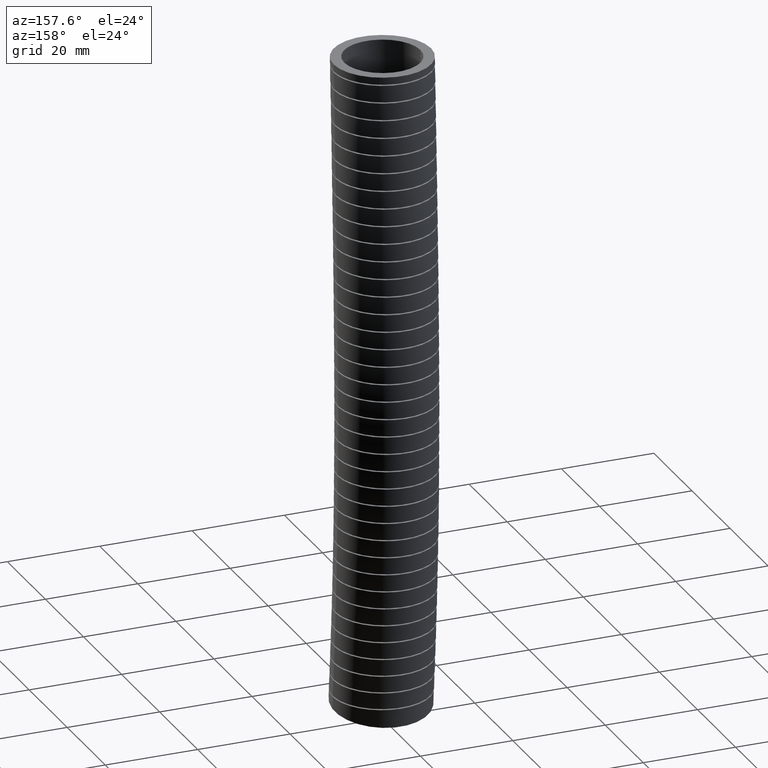
[diagram: clean part render]
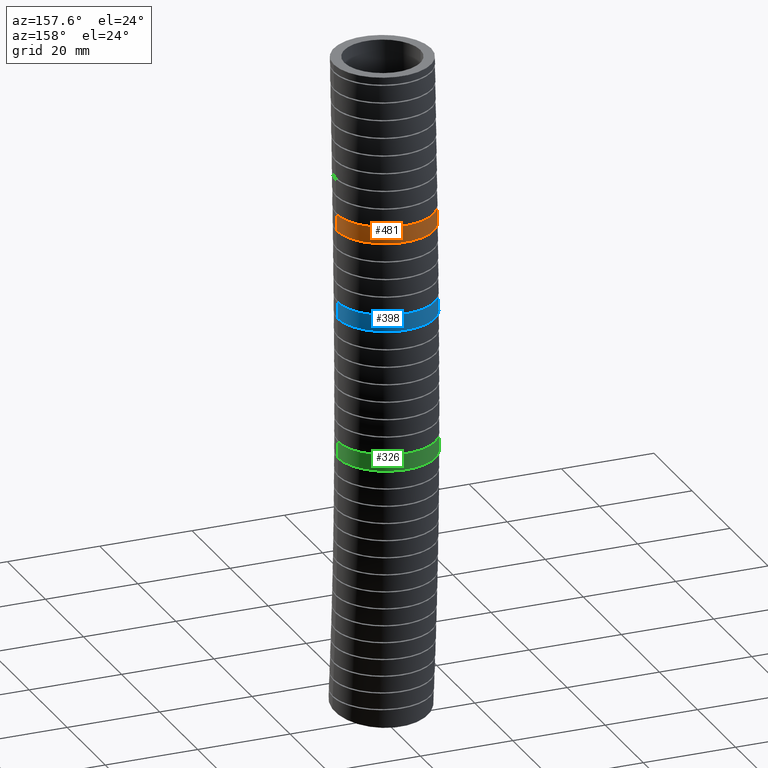
[diagram: same view with three faces highlighted in distinct colors, each labeled with its STEP entity id]
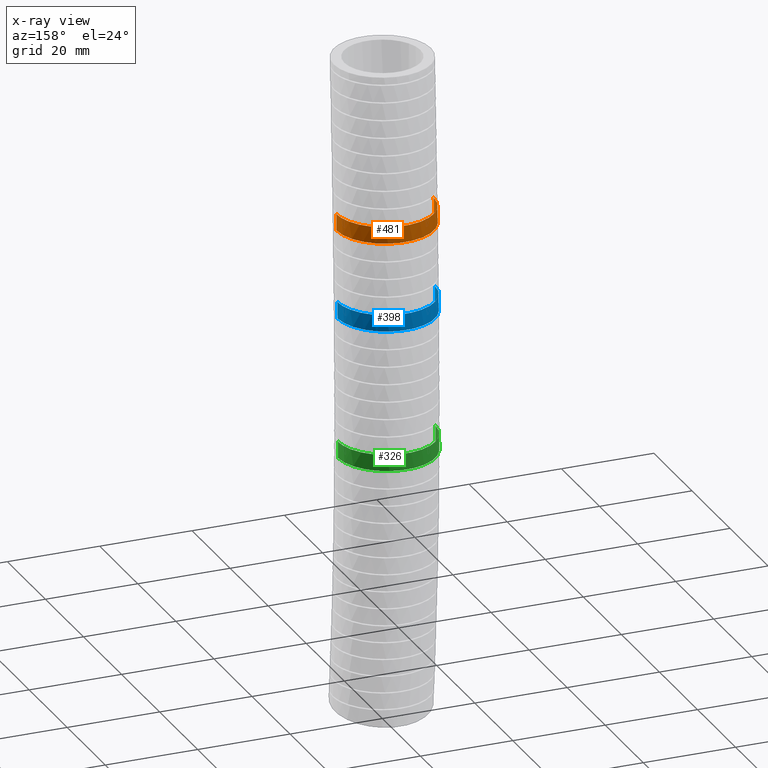
[diagram: x-ray of the same camera — body ghosted, the three highlighted faces saturated]
A machine part, auxiliary view with three faces highlighted in distinct colors.
The next image is the same camera in x-ray (body ghosted, the three faces saturated) — at least one of them is partly hidden behind the body in this view.
Their STEP definitions:

[orange] entity #481 — the highlighted face is a freeform B-spline surface patch.
#456 = ORIENTED_EDGE ( 'NONE', *, *, #464, .T. ) ;
#457 = ORIENTED_EDGE ( 'NONE', *, *, #885, .T. ) ;
#464 = EDGE_CURVE ( 'NONE', #865, #871, #14171, .T. ) ;
#468 = EDGE_CURVE ( 'NONE', #869, #872, #14320, .T. ) ;
#471 = EDGE_LOOP ( 'NONE', ( #473, #474, #457, #456 ) ) ;
#473 = ORIENTED_EDGE ( 'NONE', *, *, #873, .F. ) ;
#474 = ORIENTED_EDGE ( 'NONE', *, *, #468, .T. ) ;
#481 = ADVANCED_FACE ( 'NONE', ( #14362 ), #14432, .T. ) ;
#865 = VERTEX_POINT ( 'NONE', #7951 ) ;
#869 = VERTEX_POINT ( 'NONE', #7944 ) ;
#871 = VERTEX_POINT ( 'NONE', #8010 ) ;
#872 = VERTEX_POINT ( 'NONE', #8008 ) ;
#873 = EDGE_CURVE ( 'NONE', #869, #871, #8000, .T. ) ;
#885 = EDGE_CURVE ( 'NONE', #872, #865, #8266, .T. ) ;
#7944 = CARTESIAN_POINT ( 'NONE',  ( -0.4150000000000000900, 0.05367603331601119400, -1.268930700372042500 ) ) ;
#7951 = CARTESIAN_POINT ( 'NONE',  ( 0.4150000000000000400, 0.05873376424750326200, -1.408832748862976800 ) ) ;
#7981 = CARTESIAN_POINT ( 'NONE',  ( -0.4150000000000000400, 0.05873376424749324200, -1.408832748862833200 ) ) ;
#7983 = CARTESIAN_POINT ( 'NONE',  ( -0.4150000000000000400, 0.05709139309893702200, -1.362200551414999700 ) ) ;
#7985 = CARTESIAN_POINT ( 'NONE',  ( -0.4150000000000000900, 0.05540399189541873900, -1.315566472973891600 ) ) ;
#7987 = CARTESIAN_POINT ( 'NONE',  ( -0.4150000000000000900, 0.05367603331601119400, -1.268930700372042500 ) ) ;
#8000 = B_SPLINE_CURVE_WITH_KNOTS ( 'NONE', 3,
 ( #7987, #7985, #7983, #7981 ),
 .UNSPECIFIED., .F., .F.,
 ( 4, 4 ),
 ( 0.2273615130493314700, 0.2524350060721685100 ),
 .UNSPECIFIED. ) ;
#8008 = CARTESIAN_POINT ( 'NONE',  ( 0.4150000000000000900, 0.05367603331602129000, -1.268930700372179700 ) ) ;
#8010 = CARTESIAN_POINT ( 'NONE',  ( -0.4150000000000000400, 0.05873376424749324200, -1.408832748862833200 ) ) ;
#8256 = CARTESIAN_POINT ( 'NONE',  ( 0.4150000000000000400, 0.05873376424750326200, -1.408832748862976800 ) ) ;
#8257 = CARTESIAN_POINT ( 'NONE',  ( 0.4150000000000000900, 0.05709139309894208800, -1.362200551415141600 ) ) ;
#8259 = CARTESIAN_POINT ( 'NONE',  ( 0.4150000000000000900, 0.05540399189542379700, -1.315566472974031500 ) ) ;
#8260 = CARTESIAN_POINT ( 'NONE',  ( 0.4150000000000000900, 0.05367603331602129000, -1.268930700372179700 ) ) ;
#8266 = B_SPLINE_CURVE_WITH_KNOTS ( 'NONE', 3,
 ( #8260, #8259, #8257, #8256 ),
 .UNSPECIFIED., .F., .F.,
 ( 4, 4 ),
 ( 0.2273615130493561200, 0.2524350060721943800 ),
 .UNSPECIFIED. ) ;
#13766 = CARTESIAN_POINT ( 'NONE',  ( 0.1835599117735024200, 0.4311413972486312600, -1.408832748862833800 ) ) ;
#13769 = CARTESIAN_POINT ( 'NONE',  ( 0.2075223948829292600, 0.4183418882467340700, -1.408832748862834500 ) ) ;
#13770 = CARTESIAN_POINT ( 'NONE',  ( 0.2193121500431620100, 0.4112793678249930800, -1.408832748862834100 ) ) ;
#14171 = B_SPLINE_CURVE_WITH_KNOTS ( 'NONE', 3,
 ( #14204, #14203, #14202, #14201, #14199, #14197, #14195, #14193, #14192, #14191, #14190, #14189, #14186, #14184, #14182, #13770, #13769, #13766, #14304, #14303, #14302, #14301, #14298, #14296, #14294, #14292, #14291, #14289, #14286, #14284, #14281, #14279, #14276, #14274, #14273, #14271, #14270, #14268, #14267, #14266, #14265, #14263, #14261, #14260, #14258, #14257, #14256 ),
 .UNSPECIFIED., .F., .F.,
 ( 4, 2, 2, 2, 2, 2, 2, 2, 2, 1, 2, 2, 2, 2, 2, 2, 2, 2, 2, 2, 2, 2, 2, 4 ),
 ( 0.0000000000000000000, 0.002059647596849195500, 0.003089471395273793600, 0.004119295193698391800, 0.006178942790547591600, 0.007208766588972190600, 0.008238590387396788800, 0.01029823798424598700, 0.01132806178267058500, 0.01235788558109518500, 0.01338770937951978800, 0.01441753317794439000, 0.01647718077479359500, 0.01750700457321819500, 0.01853682837164279500, 0.02059647596849199800, 0.02162629976691660500, 0.02265612356534120800, 0.02471577116219041500, 0.02677541875903962500, 0.02780524255746422500, 0.02883506635588882500, 0.03089471395273803200, 0.03295436154958723800 ),
 .UNSPECIFIED. ) ;
#14182 = CARTESIAN_POINT ( 'NONE',  ( 0.2533425134235354200, 0.3885298394781096000, -1.408832748862834100 ) ) ;
#14184 = CARTESIAN_POINT ( 'NONE',  ( 0.2742398259200204400, 0.3713532597363529100, -1.408832748862834700 ) ) ;
#14186 = CARTESIAN_POINT ( 'NONE',  ( 0.3029641392585641900, 0.3426435229175800500, -1.408832748862834700 ) ) ;
#14189 = CARTESIAN_POINT ( 'NONE',  ( 0.3120988423604420000, 0.3325792886788779300, -1.408832748862834900 ) ) ;
#14190 = CARTESIAN_POINT ( 'NONE',  ( 0.3294597626458177200, 0.3114303312455400900, -1.408832748862834500 ) ) ;
#14191 = CARTESIAN_POINT ( 'NONE',  ( 0.3376032908710430700, 0.3004384109058206900, -1.408832748862833800 ) ) ;
#14192 = CARTESIAN_POINT ( 'NONE',  ( 0.3601964137166239200, 0.2666051388507732500, -1.408832748862834100 ) ) ;
#14193 = CARTESIAN_POINT ( 'NONE',  ( 0.3729469710725478200, 0.2427686057998489600, -1.408832748862833600 ) ) ;
#14195 = CARTESIAN_POINT ( 'NONE',  ( 0.3885742398497169500, 0.2050749434658836200, -1.408832748862833600 ) ) ;
#14197 = CARTESIAN_POINT ( 'NONE',  ( 0.3932124042409665400, 0.1921165954974319900, -1.408832748862834500 ) ) ;
#14199 = CARTESIAN_POINT ( 'NONE',  ( 0.4011144815483338500, 0.1660436912606119700, -1.408832748862833800 ) ) ;
#14201 = CARTESIAN_POINT ( 'NONE',  ( 0.4044006235095791200, 0.1528940027786585800, -1.408832748862833600 ) ) ;
#14202 = CARTESIAN_POINT ( 'NONE',  ( 0.4123088719749419800, 0.1131128090463543200, -1.408832748862834500 ) ) ;
#14203 = CARTESIAN_POINT ( 'NONE',  ( 0.4149999999999998100, 0.08615244521761611400, -1.408832748862976400 ) ) ;
#14204 = CARTESIAN_POINT ( 'NONE',  ( 0.4150000000000000400, 0.05873376424750326200, -1.408832748862976800 ) ) ;
#14256 = CARTESIAN_POINT ( 'NONE',  ( -0.4150000000000000400, 0.05873376424749324200, -1.408832748862833200 ) ) ;
#14257 = CARTESIAN_POINT ( 'NONE',  ( -0.4150000000000001500, 0.08581770872272720400, -1.408832748862834700 ) ) ;
#14258 = CARTESIAN_POINT ( 'NONE',  ( -0.4122857020543555000, 0.1133229540730791300, -1.408832748862834700 ) ) ;
#14260 = CARTESIAN_POINT ( 'NONE',  ( -0.4016780441006999600, 0.1664949414059915000, -1.408832748862834700 ) ) ;
#14261 = CARTESIAN_POINT ( 'NONE',  ( -0.3938333107303071400, 0.1923668581449793400, -1.408832748862834700 ) ) ;
#14263 = CARTESIAN_POINT ( 'NONE',  ( -0.3782078975036338200, 0.2300904215330365500, -1.408832748862834900 ) ) ;
#14265 = CARTESIAN_POINT ( 'NONE',  ( -0.3723188172265673400, 0.2425330402528123300, -1.408832748862834700 ) ) ;
#14266 = CARTESIAN_POINT ( 'NONE',  ( -0.3594715291938560500, 0.2665360755342419700, -1.408832748862834700 ) ) ;
#14267 = CARTESIAN_POINT ( 'NONE',  ( -0.3524967624132215900, 0.2781512807448072200, -1.408832748862833600 ) ) ;
#14268 = CARTESIAN_POINT ( 'NONE',  ( -0.3299533421057696000, 0.3118619656330627900, -1.408832748862833800 ) ) ;
#14270 = CARTESIAN_POINT ( 'NONE',  ( -0.3127457687878309500, 0.3328694105156093100, -1.408832748862834700 ) ) ;
#14271 = CARTESIAN_POINT ( 'NONE',  ( -0.2739942463359710800, 0.3715961588308047100, -1.408832748862834700 ) ) ;
#14273 = CARTESIAN_POINT ( 'NONE',  ( -0.2530325119653573100, 0.3887475110797318200, -1.408832748862834700 ) ) ;
#14274 = CARTESIAN_POINT ( 'NONE',  ( -0.2193007403013831900, 0.4112817398469867400, -1.408832748862834500 ) ) ;
#14276 = CARTESIAN_POINT ( 'NONE',  ( -0.2076724725204629500, 0.4182570892168481800, -1.408832748862835800 ) ) ;
#14279 = CARTESIAN_POINT ( 'NONE',  ( -0.1836284155750675400, 0.4311093995255875200, -1.408832748862835600 ) ) ;
#14281 = CARTESIAN_POINT ( 'NONE',  ( -0.1711899658121454100, 0.4369864277960379700, -1.408832748862833800 ) ) ;
#14284 = CARTESIAN_POINT ( 'NONE',  ( -0.1335063773621627800, 0.4525726737114387200, -1.408832748862834100 ) ) ;
#14286 = CARTESIAN_POINT ( 'NONE',  ( -0.1076366809073076700, 0.4604094150153414400, -1.408832748862834700 ) ) ;
#14289 = CARTESIAN_POINT ( 'NONE',  ( -0.06771759161767061700, 0.4683553062615838400, -1.408832748862834700 ) ) ;
#14291 = CARTESIAN_POINT ( 'NONE',  ( -0.05416298683577991400, 0.4703698920824831400, -1.408832748862834500 ) ) ;
#14292 = CARTESIAN_POINT ( 'NONE',  ( -0.02695494053217638000, 0.4730415309888379400, -1.408832748862834100 ) ) ;
#14294 = CARTESIAN_POINT ( 'NONE',  ( -0.01338681805319976100, 0.4736969862393138900, -1.408832748862834500 ) ) ;
#14296 = CARTESIAN_POINT ( 'NONE',  ( 0.02721303444755382400, 0.4736826587160217800, -1.408832748862833800 ) ) ;
#14298 = CARTESIAN_POINT ( 'NONE',  ( 0.05414124535226479100, 0.4710510547281972500, -1.408832748862833600 ) ) ;
#14301 = CARTESIAN_POINT ( 'NONE',  ( 0.09432036627647975800, 0.4630633194356743000, -1.408832748862834700 ) ) ;
#14302 = CARTESIAN_POINT ( 'NONE',  ( 0.1076360413938054300, 0.4597220281041037900, -1.408832748862834900 ) ) ;
#14303 = CARTESIAN_POINT ( 'NONE',  ( 0.1336163269116228400, 0.4518304745025177300, -1.408832748862834700 ) ) ;
#14304 = CARTESIAN_POINT ( 'NONE',  ( 0.1590889421906707700, 0.4427041008414515100, -1.408832748862833600 ) ) ;
#14306 = CARTESIAN_POINT ( 'NONE',  ( -0.3375306212001782400, 0.2954883962167642000, -1.268930700372042700 ) ) ;
#14307 = CARTESIAN_POINT ( 'NONE',  ( -0.3600621828438909100, 0.2617756167878349500, -1.268930700372042900 ) ) ;
#14309 = CARTESIAN_POINT ( 'NONE',  ( -0.3728952357735813600, 0.2378499550226511100, -1.268930700372041400 ) ) ;
#14310 = CARTESIAN_POINT ( 'NONE',  ( -0.3938687553713984800, 0.1872439017412037600, -1.268930700372041600 ) ) ;
#14311 = CARTESIAN_POINT ( 'NONE',  ( -0.4017054657312514300, 0.1613212648882520500, -1.268930700372042500 ) ) ;
#14312 = CARTESIAN_POINT ( 'NONE',  ( -0.4096355645483133500, 0.1215429910320082000, -1.268930700372042700 ) ) ;
#14313 = CARTESIAN_POINT ( 'NONE',  ( -0.4116367325252456900, 0.1081334135080903600, -1.268930700372042900 ) ) ;
#14314 = CARTESIAN_POINT ( 'NONE',  ( -0.4143232269716495300, 0.08100660048841387700, -1.268930700372042700 ) ) ;
#14315 = CARTESIAN_POINT ( 'NONE',  ( -0.4150000000000001500, 0.06726777809582212800, -1.268930700372042900 ) ) ;
#14316 = CARTESIAN_POINT ( 'NONE',  ( -0.4150000000000000900, 0.05367603331601119400, -1.268930700372042500 ) ) ;
#14320 = B_SPLINE_CURVE_WITH_KNOTS ( 'NONE', 3,
 ( #14316, #14315, #14314, #14313, #14312, #14311, #14310, #14309, #14307, #14306, #14429, #14428, #14427, #14426, #14424, #14423, #14422, #14420, #14419, #14418, #14417, #14415, #14414, #14411, #14409, #14407, #14406, #14403, #14401, #14398, #14395, #14393, #14391, #14389, #14388, #14387, #14385, #14384, #14383, #14381, #14380, #14378, #14377, #14375, #14374, #14373, #14372, #14370 ),
 .UNSPECIFIED., .F., .F.,
 ( 4, 2, 2, 2, 2, 2, 2, 2, 2, 2, 2, 1, 2, 2, 2, 2, 2, 2, 2, 2, 2, 2, 1, 2, 4 ),
 ( 0.03330717870997359400, 0.03434808895217744700, 0.03538899919438130000, 0.03747081967878900000, 0.03955264016319670600, 0.04059355040540055900, 0.04163446064760441300, 0.04371628113201211900, 0.04579810161641982600, 0.04787992210082753200, 0.04892083234303138500, 0.04996174258523523900, 0.05100265282743909900, 0.05204356306964294500, 0.05412538355405066600, 0.05516629379625451900, 0.05620720403845837200, 0.05828902452286608600, 0.05932993476506994600, 0.06037084500727379900, 0.06245266549168151900, 0.06349357573388538000, 0.06453448597608924000, 0.06557539621829310000, 0.06661630646049696000 ),
 .UNSPECIFIED. ) ;
#14362 = FACE_OUTER_BOUND ( 'NONE', #471, .T. ) ;
#14370 = CARTESIAN_POINT ( 'NONE',  ( 0.4150000000000000900, 0.05367603331602129000, -1.268930700372179700 ) ) ;
#14372 = CARTESIAN_POINT ( 'NONE',  ( 0.4150000000000000900, 0.06738361499828711400, -1.268930700372179300 ) ) ;
#14373 = CARTESIAN_POINT ( 'NONE',  ( 0.4143161297753789600, 0.08109990941886002800, -1.268930700372042900 ) ) ;
#14374 = CARTESIAN_POINT ( 'NONE',  ( 0.4116309614219876300, 0.1081699378591734100, -1.268930700372042900 ) ) ;
#14375 = CARTESIAN_POINT ( 'NONE',  ( 0.4076331588607058400, 0.1349561143612534900, -1.268930700372041800 ) ) ;
#14377 = CARTESIAN_POINT ( 'NONE',  ( 0.4010599446183544800, 0.1611853683078858200, -1.268930700372043600 ) ) ;
#14378 = CARTESIAN_POINT ( 'NONE',  ( 0.3931865205022155900, 0.1871334570292280700, -1.268930700372043800 ) ) ;
#14380 = CARTESIAN_POINT ( 'NONE',  ( 0.3885825838549115100, 0.2000078348679664700, -1.268930700372042300 ) ) ;
#14381 = CARTESIAN_POINT ( 'NONE',  ( 0.3728579957559898200, 0.2379213621656600900, -1.268930700372041800 ) ) ;
#14383 = CARTESIAN_POINT ( 'NONE',  ( 0.3600619452930891600, 0.2617778080909382000, -1.268930700372043800 ) ) ;
#14384 = CARTESIAN_POINT ( 'NONE',  ( 0.3375176902167022500, 0.2955068254293020700, -1.268930700372044000 ) ) ;
#14385 = CARTESIAN_POINT ( 'NONE',  ( 0.3294404881355258400, 0.3064047147591770800, -1.268930700372043600 ) ) ;
#14387 = CARTESIAN_POINT ( 'NONE',  ( 0.3121316206942358300, 0.3274921211326563600, -1.268930700372042900 ) ) ;
#14388 = CARTESIAN_POINT ( 'NONE',  ( 0.3028959705673987500, 0.3376709916010997600, -1.268930700372042300 ) ) ;
#14389 = CARTESIAN_POINT ( 'NONE',  ( 0.2740645598845188300, 0.3664684172690809100, -1.268930700372042500 ) ) ;
#14391 = CARTESIAN_POINT ( 'NONE',  ( 0.2531673147922040600, 0.3836066536208103700, -1.268930700372042700 ) ) ;
#14393 = CARTESIAN_POINT ( 'NONE',  ( 0.2193128701035911600, 0.4062311629524182300, -1.268930700372043400 ) ) ;
#14395 = CARTESIAN_POINT ( 'NONE',  ( 0.2075435198313951000, 0.4132877195049629000, -1.268930700372043600 ) ) ;
#14398 = CARTESIAN_POINT ( 'NONE',  ( 0.1834516181040439500, 0.4261531280048318500, -1.268930700372043600 ) ) ;
#14401 = CARTESIAN_POINT ( 'NONE',  ( 0.1711754536399998100, 0.4319465811158060800, -1.268930700372042700 ) ) ;
#14403 = CARTESIAN_POINT ( 'NONE',  ( 0.1336756032602148300, 0.4474627338235896400, -1.268930700372042900 ) ) ;
#14406 = CARTESIAN_POINT ( 'NONE',  ( 0.1077869992165819400, 0.4553391060536001200, -1.268930700372042900 ) ) ;
#14407 = CARTESIAN_POINT ( 'NONE',  ( 0.06758006766696604600, 0.4633383061647593500, -1.268930700372042900 ) ) ;
#14409 = CARTESIAN_POINT ( 'NONE',  ( 0.05402044285000448500, 0.4653423618920881100, -1.268930700372043400 ) ) ;
#14411 = CARTESIAN_POINT ( 'NONE',  ( 0.02701549382417439300, 0.4679914457892438400, -1.268930700372043400 ) ) ;
#14414 = CARTESIAN_POINT ( 'NONE',  ( -5.197249571735854100E-007, 0.4693078945699010700, -1.268930700372042900 ) ) ;
#14415 = CARTESIAN_POINT ( 'NONE',  ( -0.02703839988279038000, 0.4679906817068062400, -1.268930700372042900 ) ) ;
#14417 = CARTESIAN_POINT ( 'NONE',  ( -0.05408739876262654700, 0.4653343059185385300, -1.268930700372042900 ) ) ;
#14418 = CARTESIAN_POINT ( 'NONE',  ( -0.06769197187089341600, 0.4633187492522963200, -1.268930700372042900 ) ) ;
#14419 = CARTESIAN_POINT ( 'NONE',  ( -0.1078016728326195300, 0.4553307494856547700, -1.268930700372042700 ) ) ;
#14420 = CARTESIAN_POINT ( 'NONE',  ( -0.1336740004717823800, 0.4474649888292778200, -1.268930700372041800 ) ) ;
#14422 = CARTESIAN_POINT ( 'NONE',  ( -0.1837186819652903400, 0.4267550300251079000, -1.268930700372041800 ) ) ;
#14423 = CARTESIAN_POINT ( 'NONE',  ( -0.2080929301101436000, 0.4137322576063103800, -1.268930700372042500 ) ) ;
#14424 = CARTESIAN_POINT ( 'NONE',  ( -0.2531648517189975000, 0.3836053489358056100, -1.268930700372042700 ) ) ;
#14426 = CARTESIAN_POINT ( 'NONE',  ( -0.2740699459168347000, 0.3664680936108941100, -1.268930700372041100 ) ) ;
#14427 = CARTESIAN_POINT ( 'NONE',  ( -0.3029512182140638400, 0.3376132734503432000, -1.268930700372041600 ) ) ;
#14428 = CARTESIAN_POINT ( 'NONE',  ( -0.3121966082036836100, 0.3274165561905261200, -1.268930700372043400 ) ) ;
#14429 = CARTESIAN_POINT ( 'NONE',  ( -0.3294643134212917300, 0.3063720603952429500, -1.268930700372043600 ) ) ;
#14432 =( BOUNDED_SURFACE ( )  B_SPLINE_SURFACE ( 3, 3, ( 
 ( #14529, #14527, #14526, #14525, #14523, #14521 ),
 ( #14518, #14516, #14514, #14511, #14509, #14506 ),
 ( #14502, #14500, #14498, #14497, #14496, #14494 ),
 ( #14493, #14491, #14490, #14488, #14487, #14485 ),
 ( #14484, #14483, #14481, #14480, #14479, #14478 ),
 ( #14583, #14582, #14581, #14580, #14579, #14578 ),
 ( #14576, #14575, #14573, #14572, #14571, #14569 ) ),
 .UNSPECIFIED., .F., .F., .F. ) 
 B_SPLINE_SURFACE_WITH_KNOTS ( ( 4, 3, 4 ),
 ( 4, 1, 1, 4 ),
 ( 0.0000000000000000000, 0.5000000000000000000, 1.000000000000000000 ),
 ( 0.0000000000000000000, 0.5600000000000000500, 0.8973141982067990300, 1.000000000000000000 ),
 .UNSPECIFIED. ) 
 GEOMETRIC_REPRESENTATION_ITEM ( )  RATIONAL_B_SPLINE_SURFACE ( (
 ( 1.000000000000000000, 1.000000000000000000, 1.000000000000000000, 1.000000000000000000, 1.000000000000000000, 1.000000000000000000),
 ( 0.3333333333333333100, 0.3333333333333333100, 0.3333333333333333100, 0.3333333333333333100, 0.3333333333333332600, 0.3333333333333333100),
 ( 0.3333333333333333100, 0.3333333333333333100, 0.3333333333333333100, 0.3333333333333333100, 0.3333333333333332600, 0.3333333333333333100),
 ( 1.000000000000000000, 1.000000000000000000, 1.000000000000000000, 1.000000000000000000, 1.000000000000000000, 1.000000000000000000),
 ( 0.3333333333333333100, 0.3333333333333333100, 0.3333333333333333100, 0.3333333333333333100, 0.3333333333333332600, 0.3333333333333333100),
 ( 0.3333333333333333100, 0.3333333333333333100, 0.3333333333333333100, 0.3333333333333333100, 0.3333333333333332600, 0.3333333333333333100),
 ( 1.000000000000000000, 1.000000000000000000, 1.000000000000000000, 1.000000000000000000, 1.000000000000000000, 1.000000000000000000) ) ) 
 REPRESENTATION_ITEM ( '' )  SURFACE ( )  );
#14478 = CARTESIAN_POINT ( 'NONE',  ( -0.4149999999999999200, 0.7922141346493595200, -5.683419208173947200 ) ) ;
#14479 = CARTESIAN_POINT ( 'NONE',  ( -0.4150000000000000400, 0.8104118928973711400, -5.486989566509566700 ) ) ;
#14480 = CARTESIAN_POINT ( 'NONE',  ( -0.4149999999999999200, 0.8883877521622221000, -4.645305119166129900 ) ) ;
#14481 = CARTESIAN_POINT ( 'NONE',  ( -0.4149999999999999200, 0.9528682252578860600, -2.732677208711230800 ) ) ;
#14483 = CARTESIAN_POINT ( 'NONE',  ( -0.4149999999999999200, 0.8772143935941071300, -1.050081882658727000 ) ) ;
#14484 = CARTESIAN_POINT ( 'NONE',  ( -0.4150000000000000400, 0.8300000000000001800, 0.0000000000000000000 ) ) ;
#14485 = CARTESIAN_POINT ( 'NONE',  ( -0.4150000000000000400, -0.02999999999999996800, -5.569999999999998500 ) ) ;
#14487 = CARTESIAN_POINT ( 'NONE',  ( -0.4150000000000000900, -0.01243844818931298000, -5.380037381098891700 ) ) ;
#14488 = CARTESIAN_POINT ( 'NONE',  ( -0.4150000000000000900, 0.06281132015026594200, -4.566063580857106200 ) ) ;
#14490 = CARTESIAN_POINT ( 'NONE',  ( -0.4149999999999999200, 0.1218071073635320100, -2.711443563840852700 ) ) ;
#14491 = CARTESIAN_POINT ( 'NONE',  ( -0.4150000000000000900, 0.04680663936954139500, -1.041922460934817000 ) ) ;
#14493 = CARTESIAN_POINT ( 'NONE',  ( -0.4150000000000000900, 5.082284216461516900E-017, 0.0000000000000000000 ) ) ;
#14494 = CARTESIAN_POINT ( 'NONE',  ( -0.4150000000000000900, -0.8522141346493592500, -5.456580791826050700 ) ) ;
#14496 = CARTESIAN_POINT ( 'NONE',  ( -0.4150000000000002000, -0.8352887892759974800, -5.273085195688222100 ) ) ;
#14497 = CARTESIAN_POINT ( 'NONE',  ( -0.4150000000000000900, -0.7627651118616902700, -4.486822042548080700 ) ) ;
#14498 = CARTESIAN_POINT ( 'NONE',  ( -0.4150000000000000400, -0.7092540105308221500, -2.690209918970475100 ) ) ;
#14500 = CARTESIAN_POINT ( 'NONE',  ( -0.4150000000000000900, -0.7836011148550242600, -1.033763039210906500 ) ) ;
#14502 = CARTESIAN_POINT ( 'NONE',  ( -0.4150000000000000900, -0.8300000000000001800, 0.0000000000000000000 ) ) ;
#14506 = CARTESIAN_POINT ( 'NONE',  ( 0.4150000000000000400, -0.8522141346493592500, -5.456580791826050700 ) ) ;
#14509 = CARTESIAN_POINT ( 'NONE',  ( 0.4150000000000002000, -0.8352887892759974800, -5.273085195688222100 ) ) ;
#14511 = CARTESIAN_POINT ( 'NONE',  ( 0.4150000000000000400, -0.7627651118616902700, -4.486822042548080700 ) ) ;
#14514 = CARTESIAN_POINT ( 'NONE',  ( 0.4150000000000000400, -0.7092540105308221500, -2.690209918970475100 ) ) ;
#14516 = CARTESIAN_POINT ( 'NONE',  ( 0.4150000000000000900, -0.7836011148550242600, -1.033763039210906500 ) ) ;
#14518 = CARTESIAN_POINT ( 'NONE',  ( 0.4150000000000000900, -0.8300000000000001800, 0.0000000000000000000 ) ) ;
#14521 = CARTESIAN_POINT ( 'NONE',  ( 0.4150000000000000400, -0.03000000000000001600, -5.569999999999998500 ) ) ;
#14523 = CARTESIAN_POINT ( 'NONE',  ( 0.4150000000000000900, -0.01243844818931303500, -5.380037381098891700 ) ) ;
#14525 = CARTESIAN_POINT ( 'NONE',  ( 0.4150000000000000900, 0.06281132015026588700, -4.566063580857106200 ) ) ;
#14526 = CARTESIAN_POINT ( 'NONE',  ( 0.4149999999999999200, 0.1218071073635319700, -2.711443563840852700 ) ) ;
#14527 = CARTESIAN_POINT ( 'NONE',  ( 0.4150000000000000900, 0.04680663936954134600, -1.041922460934817000 ) ) ;
#14529 = CARTESIAN_POINT ( 'NONE',  ( 0.4150000000000000900, 0.0000000000000000000, 0.0000000000000000000 ) ) ;
#14569 = CARTESIAN_POINT ( 'NONE',  ( 0.4150000000000000400, -0.03000000000000001600, -5.569999999999998500 ) ) ;
#14571 = CARTESIAN_POINT ( 'NONE',  ( 0.4150000000000000900, -0.01243844818931303500, -5.380037381098891700 ) ) ;
#14572 = CARTESIAN_POINT ( 'NONE',  ( 0.4150000000000000900, 0.06281132015026588700, -4.566063580857106200 ) ) ;
#14573 = CARTESIAN_POINT ( 'NONE',  ( 0.4149999999999999200, 0.1218071073635319700, -2.711443563840852700 ) ) ;
#14575 = CARTESIAN_POINT ( 'NONE',  ( 0.4150000000000000900, 0.04680663936954134600, -1.041922460934817000 ) ) ;
#14576 = CARTESIAN_POINT ( 'NONE',  ( 0.4150000000000000900, 0.0000000000000000000, 0.0000000000000000000 ) ) ;
#14578 = CARTESIAN_POINT ( 'NONE',  ( 0.4150000000000000400, 0.7922141346493595200, -5.683419208173947200 ) ) ;
#14579 = CARTESIAN_POINT ( 'NONE',  ( 0.4150000000000002000, 0.8104118928973711400, -5.486989566509566700 ) ) ;
#14580 = CARTESIAN_POINT ( 'NONE',  ( 0.4150000000000000400, 0.8883877521622221000, -4.645305119166129900 ) ) ;
#14581 = CARTESIAN_POINT ( 'NONE',  ( 0.4150000000000000400, 0.9528682252578860600, -2.732677208711230800 ) ) ;
#14582 = CARTESIAN_POINT ( 'NONE',  ( 0.4150000000000000900, 0.8772143935941071300, -1.050081882658727000 ) ) ;
#14583 = CARTESIAN_POINT ( 'NONE',  ( 0.4150000000000000900, 0.8300000000000001800, 0.0000000000000000000 ) ) ;

[blue] entity #398 — the highlighted face is a freeform B-spline surface patch.
#188 = VERTEX_POINT ( 'NONE', #8036 ) ;
#191 = EDGE_CURVE ( 'NONE', #192, #188, #8148, .T. ) ;
#192 = VERTEX_POINT ( 'NONE', #8150 ) ;
#194 = VERTEX_POINT ( 'NONE', #8141 ) ;
#229 = EDGE_CURVE ( 'NONE', #194, #232, #8622, .T. ) ;
#232 = VERTEX_POINT ( 'NONE', #8744 ) ;
#392 = ORIENTED_EDGE ( 'NONE', *, *, #191, .F. ) ;
#393 = ORIENTED_EDGE ( 'NONE', *, *, #399, .T. ) ;
#394 = EDGE_LOOP ( 'NONE', ( #392, #393, #397, #400 ) ) ;
#395 = EDGE_CURVE ( 'NONE', #232, #188, #12538, .T. ) ;
#397 = ORIENTED_EDGE ( 'NONE', *, *, #229, .T. ) ;
#398 = ADVANCED_FACE ( 'NONE', ( #12673 ), #12150, .T. ) ;
#399 = EDGE_CURVE ( 'NONE', #192, #194, #12888, .T. ) ;
#400 = ORIENTED_EDGE ( 'NONE', *, *, #395, .T. ) ;
#8036 = CARTESIAN_POINT ( 'NONE',  ( -0.4150000000000000900, 0.08057377617487494800, -2.158511143590653000 ) ) ;
#8131 = CARTESIAN_POINT ( 'NONE',  ( -0.4150000000000000900, 0.08057377617487494800, -2.158511143590653000 ) ) ;
#8133 = CARTESIAN_POINT ( 'NONE',  ( -0.4150000000000000900, 0.07954169144969135100, -2.111861209657566200 ) ) ;
#8135 = CARTESIAN_POINT ( 'NONE',  ( -0.4150000000000000900, 0.07844047417045259300, -2.065208387922778500 ) ) ;
#8137 = CARTESIAN_POINT ( 'NONE',  ( -0.4150000000000000900, 0.07727460948501987900, -2.018552865739670300 ) ) ;
#8141 = CARTESIAN_POINT ( 'NONE',  ( 0.4150000000000000900, 0.07727460947542748300, -2.018552865547736300 ) ) ;
#8148 = B_SPLINE_CURVE_WITH_KNOTS ( 'NONE', 3,
 ( #8137, #8135, #8133, #8131 ),
 .UNSPECIFIED., .F., .F.,
 ( 4, 4 ),
 ( 0.3617363808720886500, 0.3868331519648371400 ),
 .UNSPECIFIED. ) ;
#8150 = CARTESIAN_POINT ( 'NONE',  ( -0.4150000000000000900, 0.07727460948501987900, -2.018552865739670300 ) ) ;
#8615 = CARTESIAN_POINT ( 'NONE',  ( 0.4149999999999999200, 0.08057377616638139500, -2.158511143398700300 ) ) ;
#8616 = CARTESIAN_POINT ( 'NONE',  ( 0.4149999999999999200, 0.07954169144525281800, -2.111861209465515800 ) ) ;
#8618 = CARTESIAN_POINT ( 'NONE',  ( 0.4149999999999999200, 0.07844047416583062300, -2.065208387730726300 ) ) ;
#8619 = CARTESIAN_POINT ( 'NONE',  ( 0.4150000000000000900, 0.07727460947542748300, -2.018552865547736300 ) ) ;
#8622 = B_SPLINE_CURVE_WITH_KNOTS ( 'NONE', 3,
 ( #8619, #8618, #8616, #8615 ),
 .UNSPECIFIED., .F., .F.,
 ( 4, 4 ),
 ( 0.3617363808376523000, 0.3868331519303979100 ),
 .UNSPECIFIED. ) ;
#8744 = CARTESIAN_POINT ( 'NONE',  ( 0.4149999999999999200, 0.08057377616638139500, -2.158511143398700300 ) ) ;
#12150 =( BOUNDED_SURFACE ( )  B_SPLINE_SURFACE ( 3, 3, ( 
 ( #12844, #12843, #12840, #12838, #12836, #12834 ),
 ( #12831, #12828, #12825, #12823, #12821, #12819 ),
 ( #12817, #12816, #12814, #12813, #12812, #12810 ),
 ( #12808, #12807, #12805, #12804, #12803, #12802 ),
 ( #12800, #12799, #12798, #12796, #12795, #12793 ),
 ( #12792, #12791, #12790, #12789, #12788, #12787 ),
 ( #12912, #12910, #12907, #12905, #12902, #12900 ) ),
 .UNSPECIFIED., .F., .F., .F. ) 
 B_SPLINE_SURFACE_WITH_KNOTS ( ( 4, 3, 4 ),
 ( 4, 1, 1, 4 ),
 ( 0.0000000000000000000, 0.5000000000000000000, 1.000000000000000000 ),
 ( 0.0000000000000000000, 0.5600000000000000500, 0.8973141982067990300, 1.000000000000000000 ),
 .UNSPECIFIED. ) 
 GEOMETRIC_REPRESENTATION_ITEM ( )  RATIONAL_B_SPLINE_SURFACE ( (
 ( 1.000000000000000000, 1.000000000000000000, 1.000000000000000000, 1.000000000000000000, 1.000000000000000000, 1.000000000000000000),
 ( 0.3333333333333333100, 0.3333333333333333100, 0.3333333333333333100, 0.3333333333333333100, 0.3333333333333332600, 0.3333333333333333100),
 ( 0.3333333333333333100, 0.3333333333333333100, 0.3333333333333333100, 0.3333333333333333100, 0.3333333333333332600, 0.3333333333333333100),
 ( 1.000000000000000000, 1.000000000000000000, 1.000000000000000000, 1.000000000000000000, 1.000000000000000000, 1.000000000000000000),
 ( 0.3333333333333333100, 0.3333333333333333100, 0.3333333333333333100, 0.3333333333333333100, 0.3333333333333332600, 0.3333333333333333100),
 ( 0.3333333333333333100, 0.3333333333333333100, 0.3333333333333333100, 0.3333333333333333100, 0.3333333333333332600, 0.3333333333333333100),
 ( 1.000000000000000000, 1.000000000000000000, 1.000000000000000000, 1.000000000000000000, 1.000000000000000000, 1.000000000000000000) ) ) 
 REPRESENTATION_ITEM ( '' )  SURFACE ( )  );
#12503 = CARTESIAN_POINT ( 'NONE',  ( 0.1076171351625708800, 0.4814389988223939900, -2.158511143590651700 ) ) ;
#12504 = CARTESIAN_POINT ( 'NONE',  ( 0.1335952863583201600, 0.4735519909677623500, -2.158511143590651700 ) ) ;
#12506 = CARTESIAN_POINT ( 'NONE',  ( 0.1590657641548950700, 0.4644308104429125700, -2.158511143590652100 ) ) ;
#12507 = CARTESIAN_POINT ( 'NONE',  ( 0.1835346357141819700, 0.4528746883860123000, -2.158511143590652500 ) ) ;
#12509 = CARTESIAN_POINT ( 'NONE',  ( 0.2074950596287405100, 0.4400825114395252600, -2.158511143590652500 ) ) ;
#12510 = CARTESIAN_POINT ( 'NONE',  ( 0.2192836861739086200, 0.4330242001412204500, -2.158511143590651200 ) ) ;
#12511 = CARTESIAN_POINT ( 'NONE',  ( 0.2533155135260879400, 0.4102848452290621100, -2.158511143590650300 ) ) ;
#12512 = CARTESIAN_POINT ( 'NONE',  ( 0.2742139942101534700, 0.3931155983075044800, -2.158511143590653000 ) ) ;
#12514 = CARTESIAN_POINT ( 'NONE',  ( 0.3029403556195072200, 0.3644176831826791400, -2.158511143590653000 ) ) ;
#12515 = CARTESIAN_POINT ( 'NONE',  ( 0.3120757910628962400, 0.3543575275668296400, -2.158511143590650300 ) ) ;
#12516 = CARTESIAN_POINT ( 'NONE',  ( 0.3294382812937918200, 0.3332170154908661900, -2.158511143590651200 ) ) ;
#12517 = CARTESIAN_POINT ( 'NONE',  ( 0.3375839018741250100, 0.3222277391903440900, -2.158511143590651700 ) ) ;
#12519 = CARTESIAN_POINT ( 'NONE',  ( 0.3601815934614336400, 0.2884040782128469100, -2.158511143590651700 ) ) ;
#12520 = CARTESIAN_POINT ( 'NONE',  ( 0.3729349949087235000, 0.2645738496817845500, -2.158511143590651700 ) ) ;
#12522 = CARTESIAN_POINT ( 'NONE',  ( 0.3885660762180983600, 0.2268894062689092700, -2.158511143590651700 ) ) ;
#12523 = CARTESIAN_POINT ( 'NONE',  ( 0.3932055284258771900, 0.2139339020093769300, -2.158511143590649900 ) ) ;
#12525 = CARTESIAN_POINT ( 'NONE',  ( 0.4011100441098036100, 0.1878657626532020400, -2.158511143590649900 ) ) ;
#12526 = CARTESIAN_POINT ( 'NONE',  ( 0.4043972128901031600, 0.1747184158350799100, -2.158511143590651700 ) ) ;
#12527 = CARTESIAN_POINT ( 'NONE',  ( 0.4123079628369479800, 0.1349441249830457000, -2.158511143590651700 ) ) ;
#12529 = CARTESIAN_POINT ( 'NONE',  ( 0.4149999999999999200, 0.1079882027818799100, -2.158511143398700300 ) ) ;
#12530 = CARTESIAN_POINT ( 'NONE',  ( 0.4149999999999999200, 0.08057377616638139500, -2.158511143398700300 ) ) ;
#12538 = B_SPLINE_CURVE_WITH_KNOTS ( 'NONE', 3,
 ( #12530, #12529, #12527, #12526, #12525, #12523, #12522, #12520, #12519, #12517, #12516, #12515, #12514, #12512, #12511, #12510, #12509, #12507, #12506, #12504, #12503, #12634, #12633, #12632, #12631, #12629, #12628, #12626, #12625, #12624, #12623, #12622, #12620, #12618, #12616, #12613, #12611, #12609, #12607, #12604, #12602, #12599, #12596, #12595, #12593, #12592, #12590 ),
 .UNSPECIFIED., .F., .F.,
 ( 4, 2, 2, 2, 2, 2, 2, 2, 2, 1, 2, 2, 2, 2, 2, 2, 2, 2, 2, 2, 2, 2, 2, 4 ),
 ( 0.0000000000000000000, 0.002059323909153700300, 0.003088985863730550400, 0.004118647818307400600, 0.006177971727461103500, 0.007207633682037957100, 0.008237295636614811600, 0.01029661954576851900, 0.01132628150034537200, 0.01235594345492222600, 0.01338560540949907700, 0.01441526736407593000, 0.01647459127322963400, 0.01750425322780648600, 0.01853391518238333200, 0.02059323909153703800, 0.02162290104611389000, 0.02265256300069073600, 0.02471188690984443800, 0.02677121081899813700, 0.02780087277357499000, 0.02883053472815183900, 0.03088985863730553400, 0.03294918254645923300 ),
 .UNSPECIFIED. ) ;
#12590 = CARTESIAN_POINT ( 'NONE',  ( -0.4150000000000000900, 0.08057377617487494800, -2.158511143590653000 ) ) ;
#12592 = CARTESIAN_POINT ( 'NONE',  ( -0.4149999999999999200, 0.1076535009843026100, -2.158511143590651200 ) ) ;
#12593 = CARTESIAN_POINT ( 'NONE',  ( -0.4122847213561545700, 0.1351545351121723200, -2.158511143590651700 ) ) ;
#12595 = CARTESIAN_POINT ( 'NONE',  ( -0.4016738602222222900, 0.1883165741195565200, -2.158511143590652500 ) ) ;
#12596 = CARTESIAN_POINT ( 'NONE',  ( -0.3938268805201658500, 0.2141832476181133900, -2.158511143590653000 ) ) ;
#12599 = CARTESIAN_POINT ( 'NONE',  ( -0.3781972982689725800, 0.2518985880080252300, -2.158511143590653400 ) ) ;
#12602 = CARTESIAN_POINT ( 'NONE',  ( -0.3723067673731579900, 0.2643381747814654300, -2.158511143590651700 ) ) ;
#12604 = CARTESIAN_POINT ( 'NONE',  ( -0.3594569133444389700, 0.2883344063215395000, -2.158511143590651700 ) ) ;
#12607 = CARTESIAN_POINT ( 'NONE',  ( -0.3524808820489714900, 0.2999461128808811900, -2.158511143590651700 ) ) ;
#12609 = CARTESIAN_POINT ( 'NONE',  ( -0.3299338286289049700, 0.3336460919022428700, -2.158511143590652100 ) ) ;
#12611 = CARTESIAN_POINT ( 'NONE',  ( -0.3127236713540682000, 0.3546464685700274600, -2.158511143590651700 ) ) ;
#12613 = CARTESIAN_POINT ( 'NONE',  ( -0.2739695188563280300, 0.3933574160967760500, -2.158511143590651700 ) ) ;
#12616 = CARTESIAN_POINT ( 'NONE',  ( -0.2530072766336289300, 0.4105009235322045200, -2.158511143590652500 ) ) ;
#12618 = CARTESIAN_POINT ( 'NONE',  ( -0.2192763128935377400, 0.4330240299498141500, -2.158511143590653000 ) ) ;
#12620 = CARTESIAN_POINT ( 'NONE',  ( -0.2076485770927780900, 0.4399957789197748200, -2.158511143590652500 ) ) ;
#12622 = CARTESIAN_POINT ( 'NONE',  ( -0.1836061957981214300, 0.4528412103019394700, -2.158511143590651700 ) ) ;
#12623 = CARTESIAN_POINT ( 'NONE',  ( -0.1711686147932104400, 0.4587151003899780900, -2.158511143590651700 ) ) ;
#12624 = CARTESIAN_POINT ( 'NONE',  ( -0.1334882475306257700, 0.4742927951833998400, -2.158511143590652100 ) ) ;
#12625 = CARTESIAN_POINT ( 'NONE',  ( -0.1076217614938377600, 0.4821248261103727200, -2.158511143590652500 ) ) ;
#12626 = CARTESIAN_POINT ( 'NONE',  ( -0.06770928253223078300, 0.4900658452017110400, -2.158511143590653400 ) ) ;
#12628 = CARTESIAN_POINT ( 'NONE',  ( -0.05415773376205335100, 0.4920791398155965300, -2.158511143590651700 ) ) ;
#12629 = CARTESIAN_POINT ( 'NONE',  ( -0.02695302230028475500, 0.4947493778102845500, -2.158511143590651200 ) ) ;
#12631 = CARTESIAN_POINT ( 'NONE',  ( -0.01338672702119359300, 0.4954044975196911800, -2.158511143590651200 ) ) ;
#12632 = CARTESIAN_POINT ( 'NONE',  ( 0.02720718591456639300, 0.4953903612524918600, -2.158511143590651200 ) ) ;
#12633 = CARTESIAN_POINT ( 'NONE',  ( 0.05413083021840434800, 0.4927604585736619600, -2.158511143590651700 ) ) ;
#12634 = CARTESIAN_POINT ( 'NONE',  ( 0.09430220106694121900, 0.4847783600612232700, -2.158511143590652100 ) ) ;
#12673 = FACE_OUTER_BOUND ( 'NONE', #394, .T. ) ;
#12787 = CARTESIAN_POINT ( 'NONE',  ( 0.4150000000000000400, 0.7922141346493595200, -5.683419208173947200 ) ) ;
#12788 = CARTESIAN_POINT ( 'NONE',  ( 0.4150000000000002000, 0.8104118928973711400, -5.486989566509566700 ) ) ;
#12789 = CARTESIAN_POINT ( 'NONE',  ( 0.4150000000000000400, 0.8883877521622221000, -4.645305119166129900 ) ) ;
#12790 = CARTESIAN_POINT ( 'NONE',  ( 0.4150000000000000400, 0.9528682252578860600, -2.732677208711230800 ) ) ;
#12791 = CARTESIAN_POINT ( 'NONE',  ( 0.4150000000000000900, 0.8772143935941071300, -1.050081882658727000 ) ) ;
#12792 = CARTESIAN_POINT ( 'NONE',  ( 0.4150000000000000900, 0.8300000000000001800, 0.0000000000000000000 ) ) ;
#12793 = CARTESIAN_POINT ( 'NONE',  ( -0.4149999999999999200, 0.7922141346493595200, -5.683419208173947200 ) ) ;
#12795 = CARTESIAN_POINT ( 'NONE',  ( -0.4150000000000000400, 0.8104118928973711400, -5.486989566509566700 ) ) ;
#12796 = CARTESIAN_POINT ( 'NONE',  ( -0.4149999999999999200, 0.8883877521622221000, -4.645305119166129900 ) ) ;
#12798 = CARTESIAN_POINT ( 'NONE',  ( -0.4149999999999999200, 0.9528682252578860600, -2.732677208711230800 ) ) ;
#12799 = CARTESIAN_POINT ( 'NONE',  ( -0.4149999999999999200, 0.8772143935941071300, -1.050081882658727000 ) ) ;
#12800 = CARTESIAN_POINT ( 'NONE',  ( -0.4150000000000000400, 0.8300000000000001800, 0.0000000000000000000 ) ) ;
#12802 = CARTESIAN_POINT ( 'NONE',  ( -0.4150000000000000400, -0.02999999999999996800, -5.569999999999998500 ) ) ;
#12803 = CARTESIAN_POINT ( 'NONE',  ( -0.4150000000000000900, -0.01243844818931298000, -5.380037381098891700 ) ) ;
#12804 = CARTESIAN_POINT ( 'NONE',  ( -0.4150000000000000900, 0.06281132015026594200, -4.566063580857106200 ) ) ;
#12805 = CARTESIAN_POINT ( 'NONE',  ( -0.4149999999999999200, 0.1218071073635320100, -2.711443563840852700 ) ) ;
#12807 = CARTESIAN_POINT ( 'NONE',  ( -0.4150000000000000900, 0.04680663936954139500, -1.041922460934817000 ) ) ;
#12808 = CARTESIAN_POINT ( 'NONE',  ( -0.4150000000000000900, 5.082284216461516900E-017, 0.0000000000000000000 ) ) ;
#12810 = CARTESIAN_POINT ( 'NONE',  ( -0.4150000000000000900, -0.8522141346493592500, -5.456580791826050700 ) ) ;
#12812 = CARTESIAN_POINT ( 'NONE',  ( -0.4150000000000002000, -0.8352887892759974800, -5.273085195688222100 ) ) ;
#12813 = CARTESIAN_POINT ( 'NONE',  ( -0.4150000000000000900, -0.7627651118616902700, -4.486822042548080700 ) ) ;
#12814 = CARTESIAN_POINT ( 'NONE',  ( -0.4150000000000000400, -0.7092540105308221500, -2.690209918970475100 ) ) ;
#12816 = CARTESIAN_POINT ( 'NONE',  ( -0.4150000000000000900, -0.7836011148550242600, -1.033763039210906500 ) ) ;
#12817 = CARTESIAN_POINT ( 'NONE',  ( -0.4150000000000000900, -0.8300000000000001800, 0.0000000000000000000 ) ) ;
#12819 = CARTESIAN_POINT ( 'NONE',  ( 0.4150000000000000400, -0.8522141346493592500, -5.456580791826050700 ) ) ;
#12821 = CARTESIAN_POINT ( 'NONE',  ( 0.4150000000000002000, -0.8352887892759974800, -5.273085195688222100 ) ) ;
#12823 = CARTESIAN_POINT ( 'NONE',  ( 0.4150000000000000400, -0.7627651118616902700, -4.486822042548080700 ) ) ;
#12825 = CARTESIAN_POINT ( 'NONE',  ( 0.4150000000000000400, -0.7092540105308221500, -2.690209918970475100 ) ) ;
#12828 = CARTESIAN_POINT ( 'NONE',  ( 0.4150000000000000900, -0.7836011148550242600, -1.033763039210906500 ) ) ;
#12831 = CARTESIAN_POINT ( 'NONE',  ( 0.4150000000000000900, -0.8300000000000001800, 0.0000000000000000000 ) ) ;
#12834 = CARTESIAN_POINT ( 'NONE',  ( 0.4150000000000000400, -0.03000000000000001600, -5.569999999999998500 ) ) ;
#12836 = CARTESIAN_POINT ( 'NONE',  ( 0.4150000000000000900, -0.01243844818931303500, -5.380037381098891700 ) ) ;
#12838 = CARTESIAN_POINT ( 'NONE',  ( 0.4150000000000000900, 0.06281132015026588700, -4.566063580857106200 ) ) ;
#12840 = CARTESIAN_POINT ( 'NONE',  ( 0.4149999999999999200, 0.1218071073635319700, -2.711443563840852700 ) ) ;
#12843 = CARTESIAN_POINT ( 'NONE',  ( 0.4150000000000000900, 0.04680663936954134600, -1.041922460934817000 ) ) ;
#12844 = CARTESIAN_POINT ( 'NONE',  ( 0.4150000000000000900, 0.0000000000000000000, 0.0000000000000000000 ) ) ;
#12849 = CARTESIAN_POINT ( 'NONE',  ( -0.1077856883500884200, 0.4788205544143077100, -2.018552865739668500 ) ) ;
#12850 = CARTESIAN_POINT ( 'NONE',  ( -0.1336556700049370800, 0.4709588362806439400, -2.018552865739669400 ) ) ;
#12852 = CARTESIAN_POINT ( 'NONE',  ( -0.1836955297354494200, 0.4502597589104240800, -2.018552865739669900 ) ) ;
#12853 = CARTESIAN_POINT ( 'NONE',  ( -0.2080683739151205100, 0.4372435588616737100, -2.018552865739668100 ) ) ;
#12854 = CARTESIAN_POINT ( 'NONE',  ( -0.2531412866900289400, 0.4071288825141898800, -2.018552865739669400 ) ) ;
#12856 = CARTESIAN_POINT ( 'NONE',  ( -0.2740470162074169500, 0.3899983708375448500, -2.018552865739669900 ) ) ;
#12857 = CARTESIAN_POINT ( 'NONE',  ( -0.3029295193431971200, 0.3611547024465378000, -2.018552865739670300 ) ) ;
#12859 = CARTESIAN_POINT ( 'NONE',  ( -0.3121758039281011800, 0.3509614668673372600, -2.018552865739668500 ) ) ;
#12860 = CARTESIAN_POINT ( 'NONE',  ( -0.3294461371647994200, 0.3299228244932963000, -2.018552865739668500 ) ) ;
#12862 = CARTESIAN_POINT ( 'NONE',  ( -0.3375137309162417100, 0.3190420871387875700, -2.018552865739668500 ) ) ;
#12865 = CARTESIAN_POINT ( 'NONE',  ( -0.3600490524630564600, 0.2853380785517344300, -2.018552865739669400 ) ) ;
#12867 = CARTESIAN_POINT ( 'NONE',  ( -0.3728840095473882100, 0.2614194418535757400, -2.018552865739669400 ) ) ;
#12870 = CARTESIAN_POINT ( 'NONE',  ( -0.3938629163486668200, 0.2108223578933229600, -2.018552865739669400 ) ) ;
#12873 = CARTESIAN_POINT ( 'NONE',  ( -0.4017017230400168300, 0.1849040177602480900, -2.018552865739671600 ) ) ;
#12875 = CARTESIAN_POINT ( 'NONE',  ( -0.4096340137752224600, 0.1451318965555979400, -2.018552865739670300 ) ) ;
#12877 = CARTESIAN_POINT ( 'NONE',  ( -0.4116357514637609700, 0.1317243205856636600, -2.018552865739670300 ) ) ;
#12879 = CARTESIAN_POINT ( 'NONE',  ( -0.4143230238974283100, 0.1046014021862461700, -2.018552865739670300 ) ) ;
#12881 = CARTESIAN_POINT ( 'NONE',  ( -0.4150000000000000900, 0.09086444335525038800, -2.018552865739668500 ) ) ;
#12884 = CARTESIAN_POINT ( 'NONE',  ( -0.4150000000000000900, 0.07727460948501987900, -2.018552865739670300 ) ) ;
#12888 = B_SPLINE_CURVE_WITH_KNOTS ( 'NONE', 3,
 ( #12884, #12881, #12879, #12877, #12875, #12873, #12870, #12867, #12865, #12862, #12860, #12859, #12857, #12856, #12854, #12853, #12852, #12850, #12849, #12981, #12980, #12978, #12977, #12975, #12974, #12973, #12971, #12970, #12969, #12967, #12966, #12964, #12963, #12962, #12961, #12960, #12959, #12958, #12957, #12955, #12954, #12952, #12951, #12950, #12949, #12948, #12945, #12943 ),
 .UNSPECIFIED., .F., .F.,
 ( 4, 2, 2, 2, 2, 2, 2, 2, 2, 2, 2, 1, 2, 2, 2, 2, 2, 2, 2, 2, 2, 2, 1, 2, 4 ),
 ( 0.03330244719448555200, 0.03434321460414185200, 0.03538398201379814500, 0.03746551683311074400, 0.03954705165242333700, 0.04058781906207963700, 0.04162858647173593700, 0.04371012129104853700, 0.04579165611036113700, 0.04787319092967373700, 0.04891395833933003000, 0.04995472574898633000, 0.05099549315864263000, 0.05203626056829892300, 0.05411779538761152300, 0.05515856279726782900, 0.05619933020692412900, 0.05828086502623673600, 0.05932163243589304300, 0.06036239984554933600, 0.06244393466486195000, 0.06348470207451825700, 0.06452546948417456400, 0.06556623689383087000, 0.06660700430348717700 ),
 .UNSPECIFIED. ) ;
#12900 = CARTESIAN_POINT ( 'NONE',  ( 0.4150000000000000400, -0.03000000000000001600, -5.569999999999998500 ) ) ;
#12902 = CARTESIAN_POINT ( 'NONE',  ( 0.4150000000000000900, -0.01243844818931303500, -5.380037381098891700 ) ) ;
#12905 = CARTESIAN_POINT ( 'NONE',  ( 0.4150000000000000900, 0.06281132015026588700, -4.566063580857106200 ) ) ;
#12907 = CARTESIAN_POINT ( 'NONE',  ( 0.4149999999999999200, 0.1218071073635319700, -2.711443563840852700 ) ) ;
#12910 = CARTESIAN_POINT ( 'NONE',  ( 0.4150000000000000900, 0.04680663936954134600, -1.041922460934817000 ) ) ;
#12912 = CARTESIAN_POINT ( 'NONE',  ( 0.4150000000000000900, 0.0000000000000000000, 0.0000000000000000000 ) ) ;
#12943 = CARTESIAN_POINT ( 'NONE',  ( 0.4150000000000000900, 0.07727460947542748300, -2.018552865547736300 ) ) ;
#12945 = CARTESIAN_POINT ( 'NONE',  ( 0.4150000000000003100, 0.09098031615530952100, -2.018552865547737600 ) ) ;
#12948 = CARTESIAN_POINT ( 'NONE',  ( 0.4143159221362335800, 0.1046947005036318900, -2.018552865739669900 ) ) ;
#12949 = CARTESIAN_POINT ( 'NONE',  ( 0.4116299945526357100, 0.1317607023444546900, -2.018552865739669400 ) ) ;
#12950 = CARTESIAN_POINT ( 'NONE',  ( 0.4076310865887090000, 0.1585427352799427300, -2.018552865739668100 ) ) ;
#12951 = CARTESIAN_POINT ( 'NONE',  ( 0.4010561546372774000, 0.1847676306353034400, -2.018552865739669000 ) ) ;
#12952 = CARTESIAN_POINT ( 'NONE',  ( 0.3931807268271477800, 0.2107112572139783800, -2.018552865739669000 ) ) ;
#12954 = CARTESIAN_POINT ( 'NONE',  ( 0.3885755271189479400, 0.2235836070115478600, -2.018552865739669900 ) ) ;
#12955 = CARTESIAN_POINT ( 'NONE',  ( 0.3728476061064059900, 0.2614889653947717900, -2.018552865739670300 ) ) ;
#12957 = CARTESIAN_POINT ( 'NONE',  ( 0.3600492149872660000, 0.2853395214691292200, -2.018552865739669400 ) ) ;
#12958 = CARTESIAN_POINT ( 'NONE',  ( 0.3375016603239337500, 0.3190592963464296500, -2.018552865739669000 ) ) ;
#12959 = CARTESIAN_POINT ( 'NONE',  ( 0.3294233923144827000, 0.3299540354556642600, -2.018552865739667600 ) ) ;
#12960 = CARTESIAN_POINT ( 'NONE',  ( 0.3121125222896273800, 0.3510350355324786100, -2.018552865739668100 ) ) ;
#12961 = CARTESIAN_POINT ( 'NONE',  ( 0.3028761014379073300, 0.3612104600293683500, -2.018552865739669900 ) ) ;
#12962 = CARTESIAN_POINT ( 'NONE',  ( 0.2740429693997315000, 0.3899975752615213500, -2.018552865739669400 ) ) ;
#12963 = CARTESIAN_POINT ( 'NONE',  ( 0.2531452715724639700, 0.4071289311726450900, -2.018552865739670700 ) ) ;
#12964 = CARTESIAN_POINT ( 'NONE',  ( 0.2192915906987873100, 0.4297436052297844400, -2.018552865739670700 ) ) ;
#12966 = CARTESIAN_POINT ( 'NONE',  ( 0.2075228190910139200, 0.4367969151617001600, -2.018552865739668100 ) ) ;
#12967 = CARTESIAN_POINT ( 'NONE',  ( 0.1834319509419644600, 0.4496565074955217700, -2.018552865739668500 ) ) ;
#12969 = CARTESIAN_POINT ( 'NONE',  ( 0.1711565484438743500, 0.4554472166613681700, -2.018552865739669900 ) ) ;
#12970 = CARTESIAN_POINT ( 'NONE',  ( 0.1336597555032133500, 0.4709557733466774900, -2.018552865739669900 ) ) ;
#12971 = CARTESIAN_POINT ( 'NONE',  ( 0.1077742071592047900, 0.4788279123341494000, -2.018552865739670300 ) ) ;
#12973 = CARTESIAN_POINT ( 'NONE',  ( 0.06757368853040919600, 0.4868227594634218500, -2.018552865739670300 ) ) ;
#12974 = CARTESIAN_POINT ( 'NONE',  ( 0.05401515370526244200, 0.4888259263432105400, -2.018552865739671200 ) ) ;
#12975 = CARTESIAN_POINT ( 'NONE',  ( 0.02701341796314802100, 0.4914737228961491000, -2.018552865739670700 ) ) ;
#12977 = CARTESIAN_POINT ( 'NONE',  ( 9.616158130469941400E-007, 0.4927895377275577900, -2.018552865739667200 ) ) ;
#12978 = CARTESIAN_POINT ( 'NONE',  ( -0.02703268012046937400, 0.4914731736610357700, -2.018552865739670300 ) ) ;
#12980 = CARTESIAN_POINT ( 'NONE',  ( -0.05407709332106117000, 0.4888185088850952000, -2.018552865739670700 ) ) ;
#12981 = CARTESIAN_POINT ( 'NONE',  ( -0.06767928886076561600, 0.4868042850315975100, -2.018552865739669400 ) ) ;

[green] entity #326 — the highlighted face is a freeform B-spline surface patch.
#320 = EDGE_CURVE ( 'NONE', #532, #535, #10410, .T. ) ;
#321 = ORIENTED_EDGE ( 'NONE', *, *, #320, .T. ) ;
#322 = EDGE_CURVE ( 'NONE', #540, #539, #10477, .T. ) ;
#323 = ORIENTED_EDGE ( 'NONE', *, *, #531, .T. ) ;
#324 = ORIENTED_EDGE ( 'NONE', *, *, #322, .T. ) ;
#325 = EDGE_LOOP ( 'NONE', ( #332, #324, #323, #321 ) ) ;
#326 = ADVANCED_FACE ( 'NONE', ( #10479 ), #10590, .T. ) ;
#332 = ORIENTED_EDGE ( 'NONE', *, *, #536, .F. ) ;
#531 = EDGE_CURVE ( 'NONE', #539, #532, #1323, .T. ) ;
#532 = VERTEX_POINT ( 'NONE', #1322 ) ;
#535 = VERTEX_POINT ( 'NONE', #1387 ) ;
#536 = EDGE_CURVE ( 'NONE', #540, #535, #1404, .T. ) ;
#539 = VERTEX_POINT ( 'NONE', #1405 ) ;
#540 = VERTEX_POINT ( 'NONE', #1402 ) ;
#1322 = CARTESIAN_POINT ( 'NONE',  ( 0.4150000000000000900, 0.08903980898399767300, -3.358429169387481000 ) ) ;
#1323 = B_SPLINE_CURVE_WITH_KNOTS ( 'NONE', 3,
 ( #1391, #1390, #1389, #1388 ),
 .UNSPECIFIED., .F., .F.,
 ( 4, 4 ),
 ( 0.5770097585835014500, 0.6021463586971775900 ),
 .UNSPECIFIED. ) ;
#1387 = CARTESIAN_POINT ( 'NONE',  ( -0.4150000000000001500, 0.08903980898002142300, -3.358429169578743200 ) ) ;
#1388 = CARTESIAN_POINT ( 'NONE',  ( 0.4150000000000000900, 0.08903980898399767300, -3.358429169387481000 ) ) ;
#1389 = CARTESIAN_POINT ( 'NONE',  ( 0.4150000000000000900, 0.08952484130313964600, -3.311768642541268500 ) ) ;
#1390 = CARTESIAN_POINT ( 'NONE',  ( 0.4150000000000000900, 0.08990191972009652100, -3.265103606249821300 ) ) ;
#1391 = CARTESIAN_POINT ( 'NONE',  ( 0.4150000000000000400, 0.09017555076761714400, -3.218434248759907100 ) ) ;
#1397 = CARTESIAN_POINT ( 'NONE',  ( -0.4150000000000001500, 0.08903980898002142300, -3.358429169578743200 ) ) ;
#1398 = CARTESIAN_POINT ( 'NONE',  ( -0.4150000000000000400, 0.08952484130273502500, -3.311768642608594200 ) ) ;
#1399 = CARTESIAN_POINT ( 'NONE',  ( -0.4150000000000000400, 0.08990191972069579200, -3.265103606193164400 ) ) ;
#1400 = CARTESIAN_POINT ( 'NONE',  ( -0.4150000000000000400, 0.09017555076973563000, -3.218434248579250800 ) ) ;
#1402 = CARTESIAN_POINT ( 'NONE',  ( -0.4150000000000000400, 0.09017555076973563000, -3.218434248579250800 ) ) ;
#1404 = B_SPLINE_CURVE_WITH_KNOTS ( 'NONE', 3,
 ( #1400, #1399, #1398, #1397 ),
 .UNSPECIFIED., .F., .F.,
 ( 4, 4 ),
 ( 0.5770097585510658400, 0.6021463587315265500 ),
 .UNSPECIFIED. ) ;
#1405 = CARTESIAN_POINT ( 'NONE',  ( 0.4150000000000000400, 0.09017555076761714400, -3.218434248759907100 ) ) ;
#10343 = CARTESIAN_POINT ( 'NONE',  ( -0.3938136041658714700, 0.2226008548883085500, -3.358429169578740000 ) ) ;
#10345 = CARTESIAN_POINT ( 'NONE',  ( -0.3781754411828375200, 0.2602993332803109600, -3.358429169578740000 ) ) ;
#10347 = CARTESIAN_POINT ( 'NONE',  ( -0.3722819296819019400, 0.2727326966822453700, -3.358429169578742300 ) ) ;
#10349 = CARTESIAN_POINT ( 'NONE',  ( -0.3594268033309767600, 0.2967149765498040500, -3.358429169578741800 ) ) ;
#10352 = CARTESIAN_POINT ( 'NONE',  ( -0.3524481760332187600, 0.3083195102102217500, -3.358429169578745400 ) ) ;
#10354 = CARTESIAN_POINT ( 'NONE',  ( -0.3298936711808454500, 0.3419975449935053200, -3.358429169578743600 ) ) ;
#10355 = CARTESIAN_POINT ( 'NONE',  ( -0.3126782293308649800, 0.3629834344428735600, -3.358429169578740000 ) ) ;
#10356 = CARTESIAN_POINT ( 'NONE',  ( -0.2739187159337151400, 0.4016620316473448700, -3.358429169578742300 ) ) ;
#10357 = CARTESIAN_POINT ( 'NONE',  ( -0.2529554524451262400, 0.4187894893007859700, -3.358429169578743200 ) ) ;
#10358 = CARTESIAN_POINT ( 'NONE',  ( -0.2192261744867199900, 0.4412898519165384700, -3.358429169578743200 ) ) ;
#10360 = CARTESIAN_POINT ( 'NONE',  ( -0.2075995390481613100, 0.4482542405487836000, -3.358429169578741800 ) ) ;
#10362 = CARTESIAN_POINT ( 'NONE',  ( -0.1835606109548123500, 0.4610856124762479100, -3.358429169578740900 ) ) ;
#10365 = CARTESIAN_POINT ( 'NONE',  ( -0.1711248217329709200, 0.4669530896670546800, -3.358429169578740900 ) ) ;
#10367 = CARTESIAN_POINT ( 'NONE',  ( -0.1334510753816965900, 0.4825133181343493900, -3.358429169578740000 ) ) ;
#10368 = CARTESIAN_POINT ( 'NONE',  ( -0.1075911738681602500, 0.4903357333457908900, -3.358429169578740900 ) ) ;
#10369 = CARTESIAN_POINT ( 'NONE',  ( -0.06769223243127453500, 0.4982668076781265900, -3.358429169578740900 ) ) ;
#10370 = CARTESIAN_POINT ( 'NONE',  ( -0.05414696072436060000, 0.5002774638770147700, -3.358429169578740000 ) ) ;
#10371 = CARTESIAN_POINT ( 'NONE',  ( -0.02694908470687660700, 0.5029448434089089900, -3.358429169578740000 ) ) ;
#10372 = CARTESIAN_POINT ( 'NONE',  ( -0.01338653294180787400, 0.5035992786263849800, -3.358429169578740900 ) ) ;
#10374 = CARTESIAN_POINT ( 'NONE',  ( 0.02719521584137732000, 0.5035855327137233100, -3.358429169578740500 ) ) ;
#10376 = CARTESIAN_POINT ( 'NONE',  ( 0.05410951347439876800, 0.5009591009574230200, -3.358429169578739600 ) ) ;
#10378 = CARTESIAN_POINT ( 'NONE',  ( 0.09426503025907699600, 0.4929885011774717300, -3.358429169578740000 ) ) ;
#10380 = CARTESIAN_POINT ( 'NONE',  ( 0.1075783859334416800, 0.4896530926586282200, -3.358429169578740500 ) ) ;
#10381 = CARTESIAN_POINT ( 'NONE',  ( 0.1335521546400447500, 0.4817753661849729600, -3.358429169578740500 ) ) ;
#10382 = CARTESIAN_POINT ( 'NONE',  ( 0.1590182473661132500, 0.4726647994838981100, -3.358429169578743200 ) ) ;
#10383 = CARTESIAN_POINT ( 'NONE',  ( 0.1834828072178823800, 0.4611221105949530100, -3.358429169578740500 ) ) ;
#10385 = CARTESIAN_POINT ( 'NONE',  ( 0.2074390036218316800, 0.4483449120331956000, -3.358429169578740500 ) ) ;
#10387 = CARTESIAN_POINT ( 'NONE',  ( 0.2192252640065753800, 0.4412952315856021900, -3.358429169578739600 ) ) ;
#10389 = CARTESIAN_POINT ( 'NONE',  ( 0.2532600624653634200, 0.4185766793559876400, -3.358429169578740000 ) ) ;
#10392 = CARTESIAN_POINT ( 'NONE',  ( 0.2741609209169886800, 0.4014224334919547800, -3.358429169578742700 ) ) ;
#10393 = CARTESIAN_POINT ( 'NONE',  ( 0.3028914639511009500, 0.3727487165851081600, -3.358429169578742300 ) ) ;
#10394 = CARTESIAN_POINT ( 'NONE',  ( 0.3120283964742968100, 0.3626969118097739300, -3.358429169578740000 ) ) ;
#10395 = CARTESIAN_POINT ( 'NONE',  ( 0.3293941000107766200, 0.3415736961293022700, -3.358429169578738700 ) ) ;
#10396 = CARTESIAN_POINT ( 'NONE',  ( 0.3375439898166157100, 0.3305898661567457900, -3.358429169578740000 ) ) ;
#10398 = CARTESIAN_POINT ( 'NONE',  ( 0.3601510571523869300, 0.2967859021632809300, -3.358429169578739600 ) ) ;
#10399 = CARTESIAN_POINT ( 'NONE',  ( 0.3729103053931862600, 0.2729685986410674800, -3.358429169578743200 ) ) ;
#10400 = CARTESIAN_POINT ( 'NONE',  ( 0.3885492352706372300, 0.2353030583522678100, -3.358429169578742700 ) ) ;
#10402 = CARTESIAN_POINT ( 'NONE',  ( 0.3931913374747909600, 0.2223533935899614800, -3.358429169578740000 ) ) ;
#10403 = CARTESIAN_POINT ( 'NONE',  ( 0.4011008786647845500, 0.1962950248818255400, -3.358429169578739600 ) ) ;
#10404 = CARTESIAN_POINT ( 'NONE',  ( 0.4043901658298089700, 0.1831524793638852900, -3.358429169578740000 ) ) ;
#10405 = CARTESIAN_POINT ( 'NONE',  ( 0.4123060799721001100, 0.1433923401304134600, -3.358429169578740500 ) ) ;
#10406 = CARTESIAN_POINT ( 'NONE',  ( 0.4150000000000000400, 0.1164455212240855000, -3.358429169387480200 ) ) ;
#10408 = CARTESIAN_POINT ( 'NONE',  ( 0.4150000000000000900, 0.08903980898399767300, -3.358429169387481000 ) ) ;
#10410 = B_SPLINE_CURVE_WITH_KNOTS ( 'NONE', 3,
 ( #10408, #10406, #10405, #10404, #10403, #10402, #10400, #10399, #10398, #10396, #10395, #10394, #10393, #10392, #10389, #10387, #10385, #10383, #10382, #10381, #10380, #10378, #10376, #10374, #10372, #10371, #10370, #10369, #10368, #10367, #10365, #10362, #10360, #10358, #10357, #10356, #10355, #10354, #10352, #10349, #10347, #10345, #10343, #10485, #10484, #10482, #10481 ),
 .UNSPECIFIED., .F., .F.,
 ( 4, 2, 2, 2, 2, 2, 2, 2, 2, 1, 2, 2, 2, 2, 2, 2, 2, 2, 2, 2, 2, 2, 2, 4 ),
 ( 0.0000000000000000000, 0.002058660669404839200, 0.003087991004107260500, 0.004117321338809681000, 0.006175982008214525400, 0.007205312342916945900, 0.008234642677619365500, 0.01029330334702420800, 0.01132263368172662900, 0.01235196401642905100, 0.01338129435113147100, 0.01441062468583389300, 0.01646928535523873100, 0.01749861568994115100, 0.01852794602464357200, 0.02058660669404841300, 0.02161593702875082600, 0.02264526736345324300, 0.02470392803285808100, 0.02676258870226291500, 0.02779191903696532800, 0.02882124937166774500, 0.03087991004107257900, 0.03293857071047740600 ),
 .UNSPECIFIED. ) ;
#10415 = CARTESIAN_POINT ( 'NONE',  ( 0.3028279872965601300, 0.3739686676639754100, -3.218434248579250300 ) ) ;
#10416 = CARTESIAN_POINT ( 'NONE',  ( 0.2739907090272684100, 0.4027309317179719700, -3.218434248579250800 ) ) ;
#10417 = CARTESIAN_POINT ( 'NONE',  ( 0.2530919377925531800, 0.4198457039643899200, -3.218434248579250800 ) ) ;
#10418 = CARTESIAN_POINT ( 'NONE',  ( 0.2192401502932458700, 0.4424366765898639600, -3.218434248579251600 ) ) ;
#10419 = CARTESIAN_POINT ( 'NONE',  ( 0.2074728038658671700, 0.4494821594995184700, -3.218434248579253900 ) ) ;
#10421 = CARTESIAN_POINT ( 'NONE',  ( 0.1833844344598162300, 0.4623277608319353900, -3.218434248579253400 ) ) ;
#10423 = CARTESIAN_POINT ( 'NONE',  ( 0.1711108741546209800, 0.4681118693441289100, -3.218434248579250300 ) ) ;
#10424 = CARTESIAN_POINT ( 'NONE',  ( 0.1336214723147935700, 0.4836021537416420600, -3.218434248579250300 ) ) ;
#10426 = CARTESIAN_POINT ( 'NONE',  ( 0.1077433101112859900, 0.4914641098814835900, -3.218434248579254300 ) ) ;
#10428 = CARTESIAN_POINT ( 'NONE',  ( 0.06755828736414537500, 0.4994484873411498300, -3.218434248579253900 ) ) ;
#10431 = CARTESIAN_POINT ( 'NONE',  ( 0.05400239449010484800, 0.5014495175604594100, -3.218434248579250800 ) ) ;
#10433 = CARTESIAN_POINT ( 'NONE',  ( 0.02700840240413426500, 0.5040942216459686200, -3.218434248579251200 ) ) ;
#10435 = CARTESIAN_POINT ( 'NONE',  ( 4.521863745693413300E-006, 0.5054085129531491500, -3.218434248579253900 ) ) ;
#10436 = CARTESIAN_POINT ( 'NONE',  ( -0.02701889618317436200, 0.5040941883772492900, -3.218434248579249000 ) ) ;
#10437 = CARTESIAN_POINT ( 'NONE',  ( -0.05405224590271719800, 0.5014436363579891600, -3.218434248579248500 ) ) ;
#10438 = CARTESIAN_POINT ( 'NONE',  ( -0.06764864907382676900, 0.4994326260650165400, -3.218434248579253000 ) ) ;
#10439 = CARTESIAN_POINT ( 'NONE',  ( -0.1077470960515430600, 0.4914591577215571300, -3.218434248579253400 ) ) ;
#10441 = CARTESIAN_POINT ( 'NONE',  ( -0.1336114132763104300, 0.4836071573544678000, -3.218434248579249400 ) ) ;
#10443 = CARTESIAN_POINT ( 'NONE',  ( -0.1836396124580326200, 0.4629342594296636000, -3.218434248579249400 ) ) ;
#10445 = CARTESIAN_POINT ( 'NONE',  ( -0.2080089950747278600, 0.4499339097703395900, -3.218434248579250800 ) ) ;
#10448 = CARTESIAN_POINT ( 'NONE',  ( -0.2530842800663726200, 0.4198486845749116500, -3.218434248579250800 ) ) ;
#10449 = CARTESIAN_POINT ( 'NONE',  ( -0.2739915244413408400, 0.4027344221158462000, -3.218434248579250300 ) ) ;
#10450 = CARTESIAN_POINT ( 'NONE',  ( -0.3028769685588040800, 0.3739176564476255300, -3.218434248579250300 ) ) ;
#10451 = CARTESIAN_POINT ( 'NONE',  ( -0.3121253782443737500, 0.3637328542768467600, -3.218434248579250800 ) ) ;
#10452 = CARTESIAN_POINT ( 'NONE',  ( -0.3294020649719405200, 0.3427083248654870200, -3.218434248579251600 ) ) ;
#10454 = CARTESIAN_POINT ( 'NONE',  ( -0.3374727678285227600, 0.3318346476526787300, -3.218434248579252500 ) ) ;
#10455 = CARTESIAN_POINT ( 'NONE',  ( -0.3600171819007843600, 0.2981518072782440300, -3.218434248579251600 ) ) ;
#10457 = CARTESIAN_POINT ( 'NONE',  ( -0.3728567274291598200, 0.2742501868196485200, -3.218434248579252500 ) ) ;
#10459 = CARTESIAN_POINT ( 'NONE',  ( -0.3938487107176891800, 0.2236747378696954400, -3.218434248579253000 ) ) ;
#10461 = CARTESIAN_POINT ( 'NONE',  ( -0.4016926128397685900, 0.1977667663610440100, -3.218434248579250800 ) ) ;
#10463 = CARTESIAN_POINT ( 'NONE',  ( -0.4096302359243689800, 0.1580094968007378100, -3.218434248579251200 ) ) ;
#10466 = CARTESIAN_POINT ( 'NONE',  ( -0.4116333606451406700, 0.1446067530630445200, -3.218434248579250800 ) ) ;
#10467 = CARTESIAN_POINT ( 'NONE',  ( -0.4143225281584972900, 0.1174932382182065900, -3.218434248579253000 ) ) ;
#10468 = CARTESIAN_POINT ( 'NONE',  ( -0.4149999999999999200, 0.1037607750087758300, -3.218434248579250300 ) ) ;
#10469 = CARTESIAN_POINT ( 'NONE',  ( -0.4150000000000000400, 0.09017555076973563000, -3.218434248579250800 ) ) ;
#10477 = B_SPLINE_CURVE_WITH_KNOTS ( 'NONE', 3,
 ( #10469, #10468, #10467, #10466, #10463, #10461, #10459, #10457, #10455, #10454, #10452, #10451, #10450, #10449, #10448, #10445, #10443, #10441, #10439, #10438, #10437, #10436, #10435, #10433, #10431, #10428, #10426, #10424, #10423, #10421, #10419, #10418, #10417, #10416, #10415, #10548, #10547, #10545, #10544, #10543, #10541, #10540, #10538, #10537, #10534, #10533, #10532, #10531 ),
 .UNSPECIFIED., .F., .F.,
 ( 4, 2, 2, 2, 2, 2, 2, 2, 2, 2, 2, 1, 2, 2, 2, 2, 2, 2, 2, 2, 2, 2, 1, 2, 4 ),
 ( 0.03329091349563552400, 0.03433133623493937700, 0.03537175897424322400, 0.03745260445285093100, 0.03953344993145863100, 0.04057387267076248400, 0.04161429541006633100, 0.04369514088867403100, 0.04577598636728173700, 0.04785683184588943000, 0.04889725458519328400, 0.04993767732449713700, 0.05097810006380098400, 0.05201852280310483700, 0.05409936828171253700, 0.05513979102101639100, 0.05618021376032023700, 0.05826105923892793700, 0.05930148197823179000, 0.06034190471753564400, 0.06242275019614335100, 0.06346317293544720400, 0.06450359567475105700, 0.06554401841405491100, 0.06658444115335876400 ),
 .UNSPECIFIED. ) ;
#10479 = FACE_OUTER_BOUND ( 'NONE', #325, .T. ) ;
#10481 = CARTESIAN_POINT ( 'NONE',  ( -0.4150000000000001500, 0.08903980898002142300, -3.358429169578743200 ) ) ;
#10482 = CARTESIAN_POINT ( 'NONE',  ( -0.4150000000000001500, 0.1161108902302625400, -3.358429169578740900 ) ) ;
#10484 = CARTESIAN_POINT ( 'NONE',  ( -0.4122826904856220500, 0.1436032989977644200, -3.358429169578740500 ) ) ;
#10485 = CARTESIAN_POINT ( 'NONE',  ( -0.4016652162709720700, 0.1967449351036696900, -3.358429169578740500 ) ) ;
#10531 = CARTESIAN_POINT ( 'NONE',  ( 0.4150000000000000400, 0.09017555076761714400, -3.218434248759907100 ) ) ;
#10532 = CARTESIAN_POINT ( 'NONE',  ( 0.4150000000000001500, 0.1038767326157381800, -3.218434248759906200 ) ) ;
#10533 = CARTESIAN_POINT ( 'NONE',  ( 0.4143154153334126000, 0.1175865131380271800, -3.218434248579250800 ) ) ;
#10534 = CARTESIAN_POINT ( 'NONE',  ( 0.4116276366015769200, 0.1446428024934305600, -3.218434248579250800 ) ) ;
#10537 = CARTESIAN_POINT ( 'NONE',  ( 0.4076260352724400700, 0.1714148334593628100, -3.218434248579253400 ) ) ;
#10538 = CARTESIAN_POINT ( 'NONE',  ( 0.4010469283528417300, 0.1976291958408853100, -3.218434248579250800 ) ) ;
#10540 = CARTESIAN_POINT ( 'NONE',  ( 0.3931666376084314600, 0.2235620343551765800, -3.218434248579251200 ) ) ;
#10541 = CARTESIAN_POINT ( 'NONE',  ( 0.3885583826290732200, 0.2364294633466593200, -3.218434248579250800 ) ) ;
#10543 = CARTESIAN_POINT ( 'NONE',  ( 0.3728223719139701100, 0.2743151112196655100, -3.218434248579251200 ) ) ;
#10544 = CARTESIAN_POINT ( 'NONE',  ( 0.3600183100227645800, 0.2981514444736169700, -3.218434248579250800 ) ) ;
#10545 = CARTESIAN_POINT ( 'NONE',  ( 0.3374627885489957500, 0.3318488955977945700, -3.218434248579250300 ) ) ;
#10547 = CARTESIAN_POINT ( 'NONE',  ( 0.3293819516258816900, 0.3427360249574741300, -3.218434248579250800 ) ) ;
#10548 = CARTESIAN_POINT ( 'NONE',  ( 0.3120662677084960500, 0.3638015493703393700, -3.218434248579250300 ) ) ;
#10550 = CARTESIAN_POINT ( 'NONE',  ( -0.4150000000000000900, -0.7627651118616902700, -4.486822042548080700 ) ) ;
#10552 = CARTESIAN_POINT ( 'NONE',  ( -0.4150000000000000400, -0.7092540105308221500, -2.690209918970475100 ) ) ;
#10554 = CARTESIAN_POINT ( 'NONE',  ( -0.4150000000000000900, -0.7836011148550242600, -1.033763039210906500 ) ) ;
#10557 = CARTESIAN_POINT ( 'NONE',  ( -0.4150000000000000900, -0.8300000000000001800, 0.0000000000000000000 ) ) ;
#10561 = CARTESIAN_POINT ( 'NONE',  ( 0.4150000000000000400, -0.8522141346493592500, -5.456580791826050700 ) ) ;
#10562 = CARTESIAN_POINT ( 'NONE',  ( 0.4150000000000002000, -0.8352887892759974800, -5.273085195688222100 ) ) ;
#10563 = CARTESIAN_POINT ( 'NONE',  ( 0.4150000000000000400, -0.7627651118616902700, -4.486822042548080700 ) ) ;
#10565 = CARTESIAN_POINT ( 'NONE',  ( 0.4150000000000000400, -0.7092540105308221500, -2.690209918970475100 ) ) ;
#10567 = CARTESIAN_POINT ( 'NONE',  ( 0.4150000000000000900, -0.7836011148550242600, -1.033763039210906500 ) ) ;
#10569 = CARTESIAN_POINT ( 'NONE',  ( 0.4150000000000000900, -0.8300000000000001800, 0.0000000000000000000 ) ) ;
#10572 = CARTESIAN_POINT ( 'NONE',  ( 0.4150000000000000400, -0.03000000000000001600, -5.569999999999998500 ) ) ;
#10574 = CARTESIAN_POINT ( 'NONE',  ( 0.4150000000000000900, -0.01243844818931303500, -5.380037381098891700 ) ) ;
#10576 = CARTESIAN_POINT ( 'NONE',  ( 0.4150000000000000900, 0.06281132015026588700, -4.566063580857106200 ) ) ;
#10577 = CARTESIAN_POINT ( 'NONE',  ( 0.4149999999999999200, 0.1218071073635319700, -2.711443563840852700 ) ) ;
#10578 = CARTESIAN_POINT ( 'NONE',  ( 0.4150000000000000900, 0.04680663936954134600, -1.041922460934817000 ) ) ;
#10579 = CARTESIAN_POINT ( 'NONE',  ( 0.4150000000000000900, 0.0000000000000000000, 0.0000000000000000000 ) ) ;
#10590 =( BOUNDED_SURFACE ( )  B_SPLINE_SURFACE ( 3, 3, ( 
 ( #10579, #10578, #10577, #10576, #10574, #10572 ),
 ( #10569, #10567, #10565, #10563, #10562, #10561 ),
 ( #10557, #10554, #10552, #10550, #10647, #10646 ),
 ( #10645, #10644, #10643, #10642, #10640, #10639 ),
 ( #10637, #10636, #10635, #10634, #10632, #10631 ),
 ( #10630, #10628, #10627, #10625, #10624, #10623 ),
 ( #10622, #10621, #10620, #10619, #10617, #10616 ) ),
 .UNSPECIFIED., .F., .F., .F. ) 
 B_SPLINE_SURFACE_WITH_KNOTS ( ( 4, 3, 4 ),
 ( 4, 1, 1, 4 ),
 ( 0.0000000000000000000, 0.5000000000000000000, 1.000000000000000000 ),
 ( 0.0000000000000000000, 0.5600000000000000500, 0.8973141982067990300, 1.000000000000000000 ),
 .UNSPECIFIED. ) 
 GEOMETRIC_REPRESENTATION_ITEM ( )  RATIONAL_B_SPLINE_SURFACE ( (
 ( 1.000000000000000000, 1.000000000000000000, 1.000000000000000000, 1.000000000000000000, 1.000000000000000000, 1.000000000000000000),
 ( 0.3333333333333333100, 0.3333333333333333100, 0.3333333333333333100, 0.3333333333333333100, 0.3333333333333332600, 0.3333333333333333100),
 ( 0.3333333333333333100, 0.3333333333333333100, 0.3333333333333333100, 0.3333333333333333100, 0.3333333333333332600, 0.3333333333333333100),
 ( 1.000000000000000000, 1.000000000000000000, 1.000000000000000000, 1.000000000000000000, 1.000000000000000000, 1.000000000000000000),
 ( 0.3333333333333333100, 0.3333333333333333100, 0.3333333333333333100, 0.3333333333333333100, 0.3333333333333332600, 0.3333333333333333100),
 ( 0.3333333333333333100, 0.3333333333333333100, 0.3333333333333333100, 0.3333333333333333100, 0.3333333333333332600, 0.3333333333333333100),
 ( 1.000000000000000000, 1.000000000000000000, 1.000000000000000000, 1.000000000000000000, 1.000000000000000000, 1.000000000000000000) ) ) 
 REPRESENTATION_ITEM ( '' )  SURFACE ( )  );
#10616 = CARTESIAN_POINT ( 'NONE',  ( 0.4150000000000000400, -0.03000000000000001600, -5.569999999999998500 ) ) ;
#10617 = CARTESIAN_POINT ( 'NONE',  ( 0.4150000000000000900, -0.01243844818931303500, -5.380037381098891700 ) ) ;
#10619 = CARTESIAN_POINT ( 'NONE',  ( 0.4150000000000000900, 0.06281132015026588700, -4.566063580857106200 ) ) ;
#10620 = CARTESIAN_POINT ( 'NONE',  ( 0.4149999999999999200, 0.1218071073635319700, -2.711443563840852700 ) ) ;
#10621 = CARTESIAN_POINT ( 'NONE',  ( 0.4150000000000000900, 0.04680663936954134600, -1.041922460934817000 ) ) ;
#10622 = CARTESIAN_POINT ( 'NONE',  ( 0.4150000000000000900, 0.0000000000000000000, 0.0000000000000000000 ) ) ;
#10623 = CARTESIAN_POINT ( 'NONE',  ( 0.4150000000000000400, 0.7922141346493595200, -5.683419208173947200 ) ) ;
#10624 = CARTESIAN_POINT ( 'NONE',  ( 0.4150000000000002000, 0.8104118928973711400, -5.486989566509566700 ) ) ;
#10625 = CARTESIAN_POINT ( 'NONE',  ( 0.4150000000000000400, 0.8883877521622221000, -4.645305119166129900 ) ) ;
#10627 = CARTESIAN_POINT ( 'NONE',  ( 0.4150000000000000400, 0.9528682252578860600, -2.732677208711230800 ) ) ;
#10628 = CARTESIAN_POINT ( 'NONE',  ( 0.4150000000000000900, 0.8772143935941071300, -1.050081882658727000 ) ) ;
#10630 = CARTESIAN_POINT ( 'NONE',  ( 0.4150000000000000900, 0.8300000000000001800, 0.0000000000000000000 ) ) ;
#10631 = CARTESIAN_POINT ( 'NONE',  ( -0.4149999999999999200, 0.7922141346493595200, -5.683419208173947200 ) ) ;
#10632 = CARTESIAN_POINT ( 'NONE',  ( -0.4150000000000000400, 0.8104118928973711400, -5.486989566509566700 ) ) ;
#10634 = CARTESIAN_POINT ( 'NONE',  ( -0.4149999999999999200, 0.8883877521622221000, -4.645305119166129900 ) ) ;
#10635 = CARTESIAN_POINT ( 'NONE',  ( -0.4149999999999999200, 0.9528682252578860600, -2.732677208711230800 ) ) ;
#10636 = CARTESIAN_POINT ( 'NONE',  ( -0.4149999999999999200, 0.8772143935941071300, -1.050081882658727000 ) ) ;
#10637 = CARTESIAN_POINT ( 'NONE',  ( -0.4150000000000000400, 0.8300000000000001800, 0.0000000000000000000 ) ) ;
#10639 = CARTESIAN_POINT ( 'NONE',  ( -0.4150000000000000400, -0.02999999999999996800, -5.569999999999998500 ) ) ;
#10640 = CARTESIAN_POINT ( 'NONE',  ( -0.4150000000000000900, -0.01243844818931298000, -5.380037381098891700 ) ) ;
#10642 = CARTESIAN_POINT ( 'NONE',  ( -0.4150000000000000900, 0.06281132015026594200, -4.566063580857106200 ) ) ;
#10643 = CARTESIAN_POINT ( 'NONE',  ( -0.4149999999999999200, 0.1218071073635320100, -2.711443563840852700 ) ) ;
#10644 = CARTESIAN_POINT ( 'NONE',  ( -0.4150000000000000900, 0.04680663936954139500, -1.041922460934817000 ) ) ;
#10645 = CARTESIAN_POINT ( 'NONE',  ( -0.4150000000000000900, 5.082284216461516900E-017, 0.0000000000000000000 ) ) ;
#10646 = CARTESIAN_POINT ( 'NONE',  ( -0.4150000000000000900, -0.8522141346493592500, -5.456580791826050700 ) ) ;
#10647 = CARTESIAN_POINT ( 'NONE',  ( -0.4150000000000002000, -0.8352887892759974800, -5.273085195688222100 ) ) ;